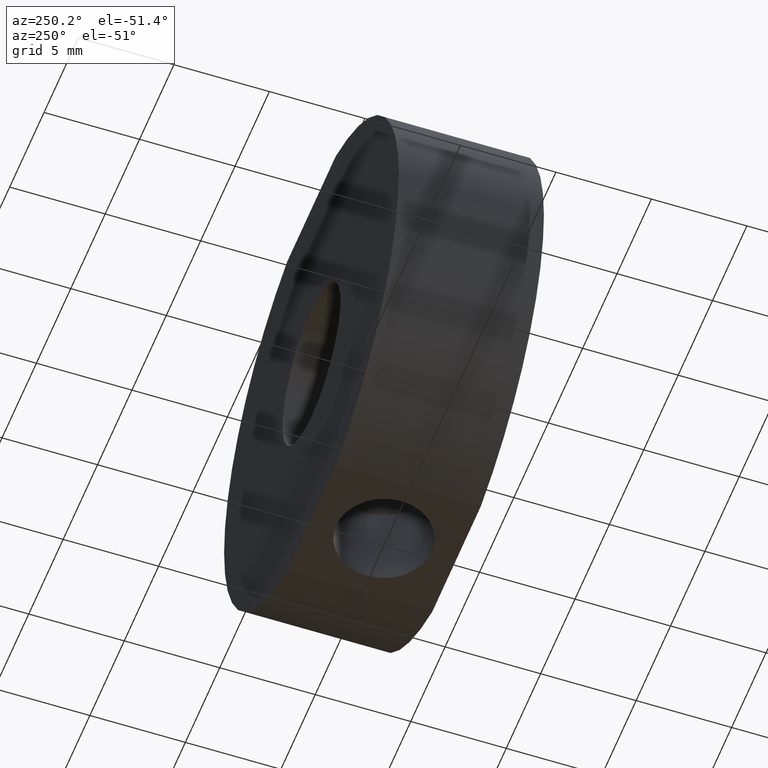
[diagram: clean part render]
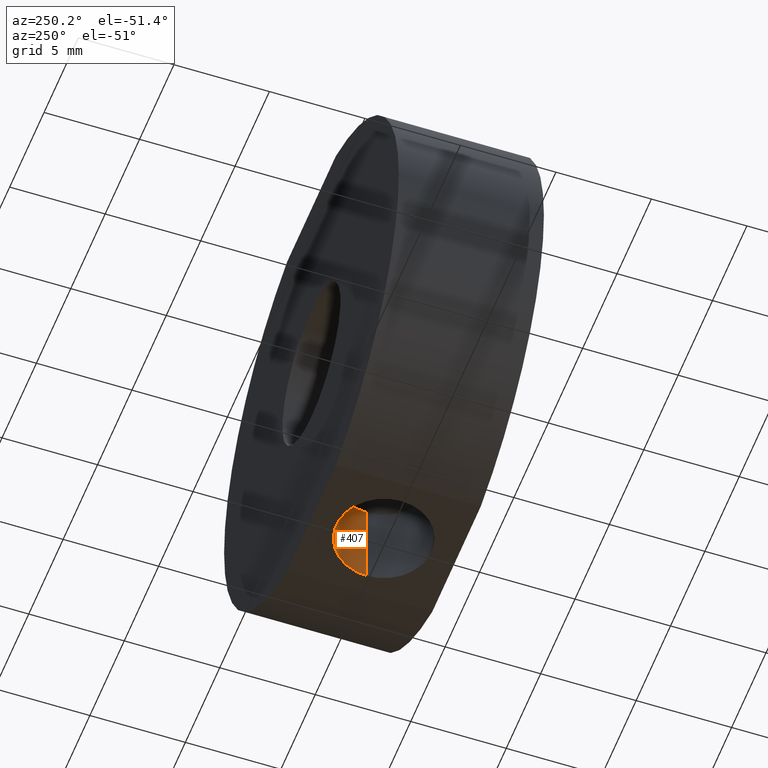
[diagram: same view with one face highlighted and labeled with its STEP entity id]
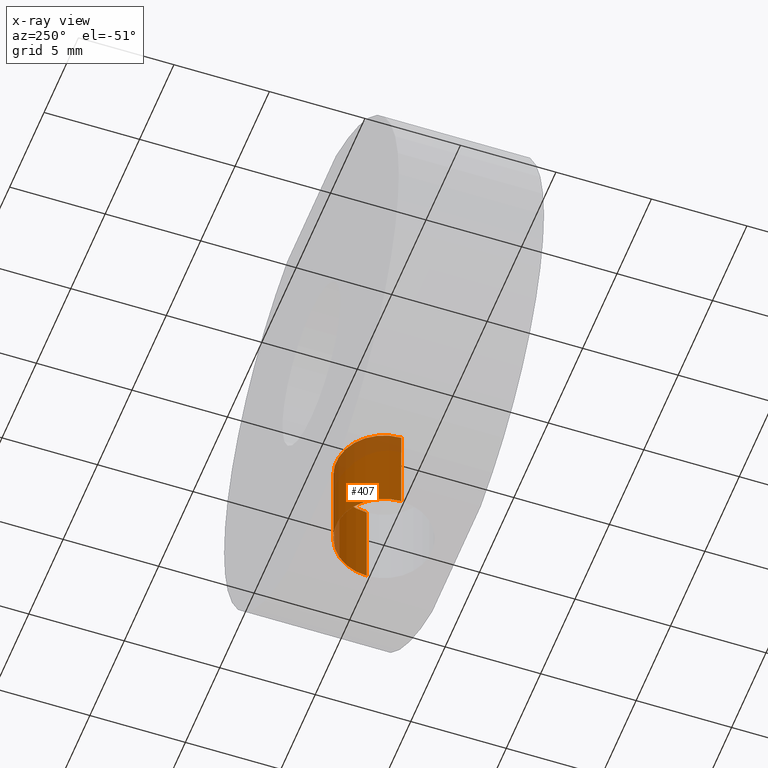
[diagram: x-ray of the same camera — body ghosted, the highlighted face saturated]
A machine part, auxiliary view. The second image highlights one B-rep face of the part: STEP entity #407.
The next image is the same camera in x-ray: the body ghosted, the highlighted face saturated — about 20% of this face is hidden behind the body in this view.
In plain terms, the highlighted cylindrical surface (partial cylindrical patch) has radius 2.5 mm, axis along (-0, -0, -1).
Its self-contained STEP definition (entity closure, byte-faithful):
#26 = AXIS2_PLACEMENT_3D ( 'NONE', #97, #504, #252 ) ;
#94 = LINE ( 'NONE', #518, #463 ) ;
#95 = EDGE_CURVE ( 'NONE', #195, #493, #158, .T. ) ;
#96 = CIRCLE ( 'NONE', #26, 2.500000000000000400 ) ;
#97 = CARTESIAN_POINT ( 'NONE',  ( 0.0000000000000000000, 0.0000000000000000000, -12.19999999999999900 ) ) ;
#101 = DIRECTION ( 'NONE',  ( -0.0000000000000000000, -0.0000000000000000000, -1.000000000000000000 ) ) ;
#108 = DIRECTION ( 'NONE',  ( -0.0000000000000000000, -0.0000000000000000000, -1.000000000000000000 ) ) ;
#125 = AXIS2_PLACEMENT_3D ( 'NONE', #383, #108, #148 ) ;
#136 = CARTESIAN_POINT ( 'NONE',  ( 0.0000000000000000000, 0.0000000000000000000, -7.199999999999999300 ) ) ;
#148 = DIRECTION ( 'NONE',  ( -1.000000000000000000, 0.0000000000000000000, 0.0000000000000000000 ) ) ;
#150 = ORIENTED_EDGE ( 'NONE', *, *, #362, .T. ) ;
#153 = DIRECTION ( 'NONE',  ( -0.0000000000000000000, -0.0000000000000000000, -1.000000000000000000 ) ) ;
#158 = LINE ( 'NONE', #339, #226 ) ;
#181 = DIRECTION ( 'NONE',  ( -1.000000000000000000, 0.0000000000000000000, 0.0000000000000000000 ) ) ;
#195 = VERTEX_POINT ( 'NONE', #215 ) ;
#215 = CARTESIAN_POINT ( 'NONE',  ( 2.499999999999999100, 3.061616997868382200E-016, -7.199999999999999300 ) ) ;
#222 = CARTESIAN_POINT ( 'NONE',  ( 2.500000000000000900, 3.061616997868384100E-016, -12.19999999999999900 ) ) ;
#226 = VECTOR ( 'NONE', #101, 1000.000000000000000 ) ;
#236 = FACE_OUTER_BOUND ( 'NONE', #461, .T. ) ;
#252 = DIRECTION ( 'NONE',  ( -1.000000000000000000, 0.0000000000000000000, 0.0000000000000000000 ) ) ;
#275 = AXIS2_PLACEMENT_3D ( 'NONE', #136, #410, #181 ) ;
#299 = CIRCLE ( 'NONE', #275, 2.499999999999999100 ) ;
#315 = EDGE_CURVE ( 'NONE', #416, #493, #96, .T. ) ;
#336 = ORIENTED_EDGE ( 'NONE', *, *, #315, .T. ) ;
#339 = CARTESIAN_POINT ( 'NONE',  ( 2.499999999999999600, 3.061616997868382600E-016, -12.19999999999999900 ) ) ;
#346 = EDGE_CURVE ( 'NONE', #387, #195, #299, .T. ) ;
#362 = EDGE_CURVE ( 'NONE', #387, #416, #94, .T. ) ;
#383 = CARTESIAN_POINT ( 'NONE',  ( 0.0000000000000000000, 0.0000000000000000000, -12.19999999999999900 ) ) ;
#387 = VERTEX_POINT ( 'NONE', #474 ) ;
#407 = ADVANCED_FACE ( 'NONE', ( #236 ), #450, .F. ) ;
#410 = DIRECTION ( 'NONE',  ( -0.0000000000000000000, -0.0000000000000000000, -1.000000000000000000 ) ) ;
#416 = VERTEX_POINT ( 'NONE', #425 ) ;
#425 = CARTESIAN_POINT ( 'NONE',  ( -2.500000000000000400, 0.0000000000000000000, -12.19999999999999900 ) ) ;
#432 = ORIENTED_EDGE ( 'NONE', *, *, #95, .F. ) ;
#450 = CYLINDRICAL_SURFACE ( 'NONE', #125, 2.499999999999999600 ) ;
#461 = EDGE_LOOP ( 'NONE', ( #432, #480, #150, #336 ) ) ;
#463 = VECTOR ( 'NONE', #153, 1000.000000000000000 ) ;
#474 = CARTESIAN_POINT ( 'NONE',  ( -2.499999999999999100, 0.0000000000000000000, -7.199999999999999300 ) ) ;
#480 = ORIENTED_EDGE ( 'NONE', *, *, #346, .F. ) ;
#493 = VERTEX_POINT ( 'NONE', #222 ) ;
#504 = DIRECTION ( 'NONE',  ( -0.0000000000000000000, -0.0000000000000000000, -1.000000000000000000 ) ) ;
#518 = CARTESIAN_POINT ( 'NONE',  ( -2.499999999999999600, 0.0000000000000000000, -12.19999999999999900 ) ) ;